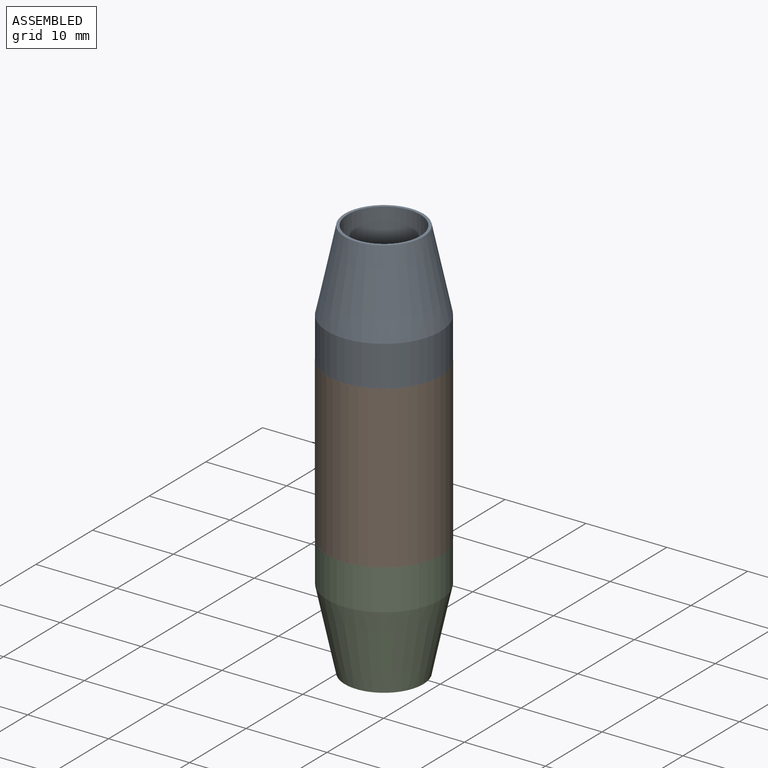
[diagram: assembled view]
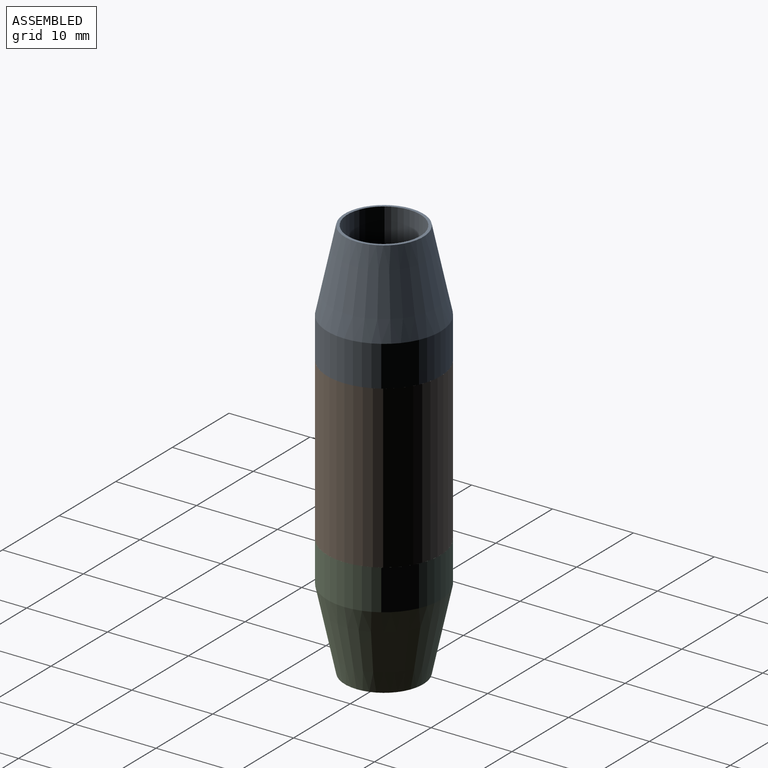
[diagram: assembled view, second angle]
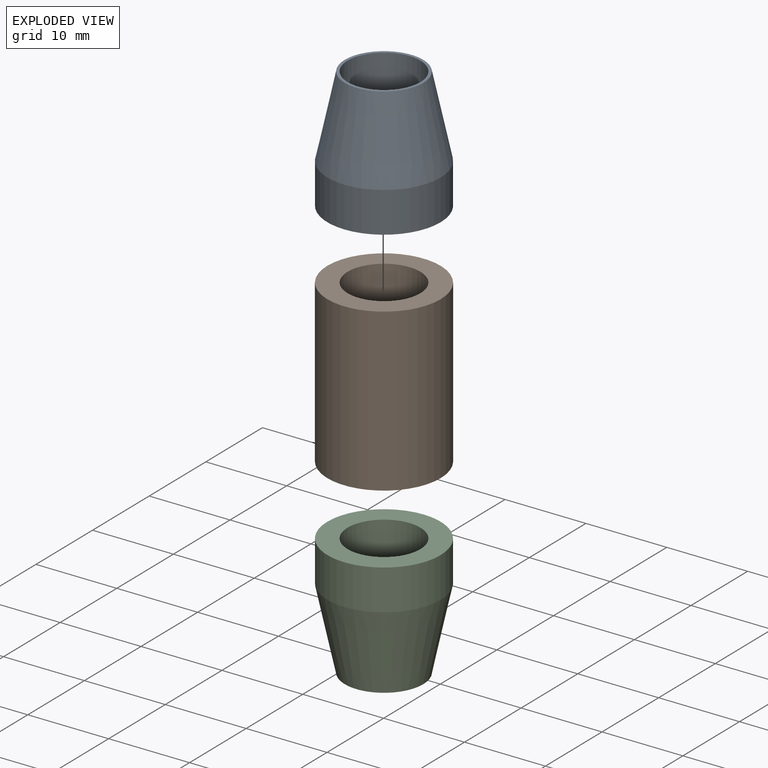
[diagram: exploded view]
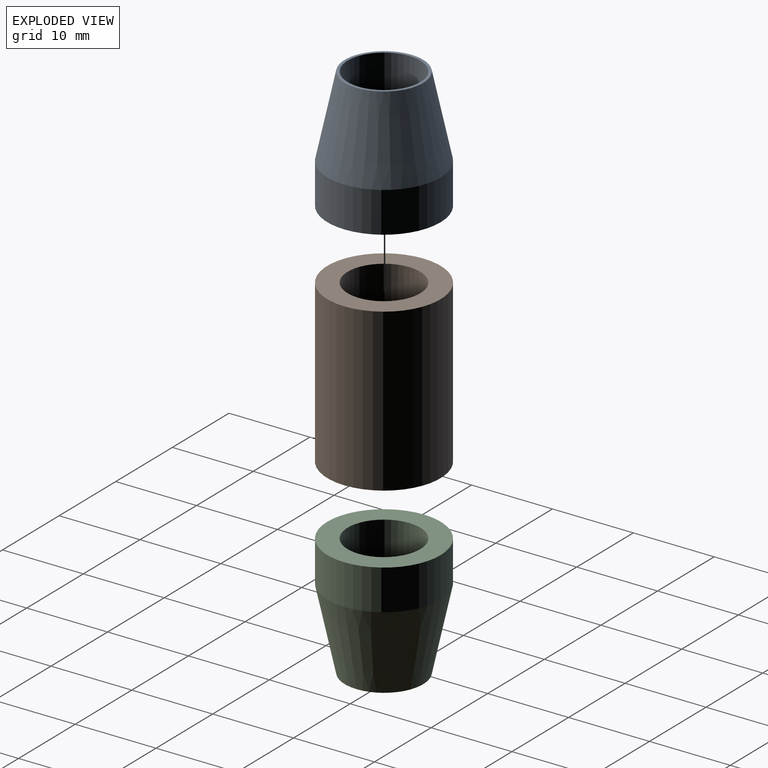
[diagram: exploded view, second angle]
ASSEMBLY  parts=3 mates=2
PART A: 5 faces, bbox 14x14x15 mm
  f0: plane 9.7x9.7mm, normal (0,0,1), area 10.3mm2, adj f1,f4
  f1: cone r=4.85mm half-angle=12.1deg, axis (0,0,-1), area 380.8mm2, adj f0,f2
  f2: cylinder r=7mm len=14mm, axis (0,0,1), area 219.9mm2, adj f1,f3
  f3: plane 14x14mm, normal (0,0,-1), area 90.3mm2, adj f2,f4
  f4: cylinder r=4.5mm len=15mm, axis (0,0,-1), area 424.1mm2, adj f0,f3
PART B: 4 faces, bbox 14x14x20 mm
  f0: cylinder r=4.5mm len=20mm, axis (0,0,-1), area 565.5mm2, adj f2,f3
  f1: cylinder r=7mm len=20mm, axis (0,0,-1), area 879.6mm2, adj f2,f3
  f2: plane 14x14mm, normal (0,0,1), area 90.3mm2, adj f0,f1
  f3: plane 14x14mm, normal (0,0,-1), area 90.3mm2, adj f0,f1
PART C: same geometry as A
PLACE A t=(-1.94,2.83,20.92)mm
PLACE B t=(-1.94,2.83,-4.08)mm
PLACE C rot(axis=(0,1,0),180deg) t=(-1.94,2.83,-9.08)mm
MATE fastened A.f1 <-> B.f1  axis (0,0,-1) through (-1.94,2.83,15.92)mm
MATE fastened C.f1 <-> B.f1  axis (0,0,1) through (-1.94,2.83,-4.08)mm
